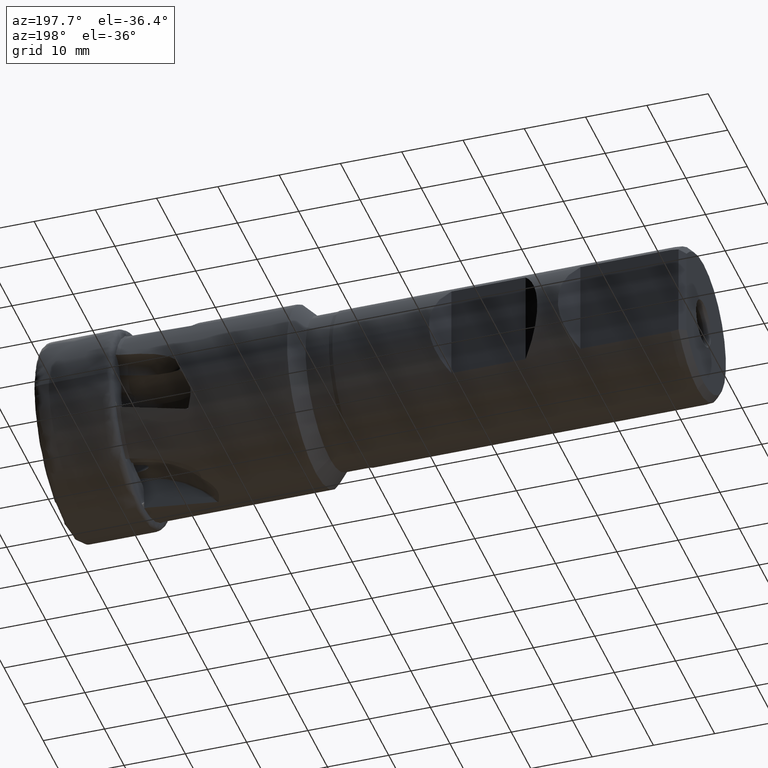
[diagram: clean part render]
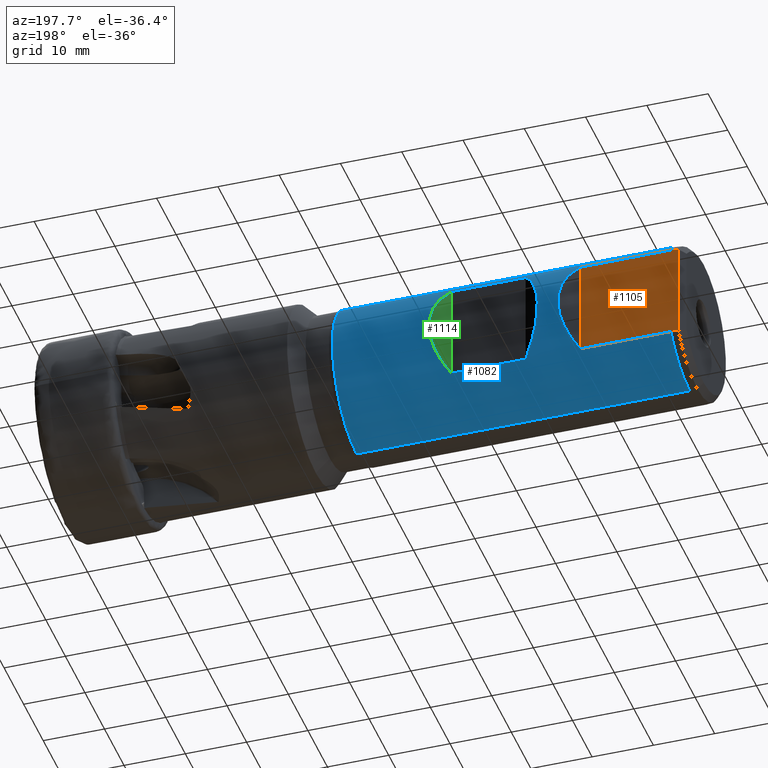
[diagram: same view with three faces highlighted in distinct colors, each labeled with its STEP entity id]
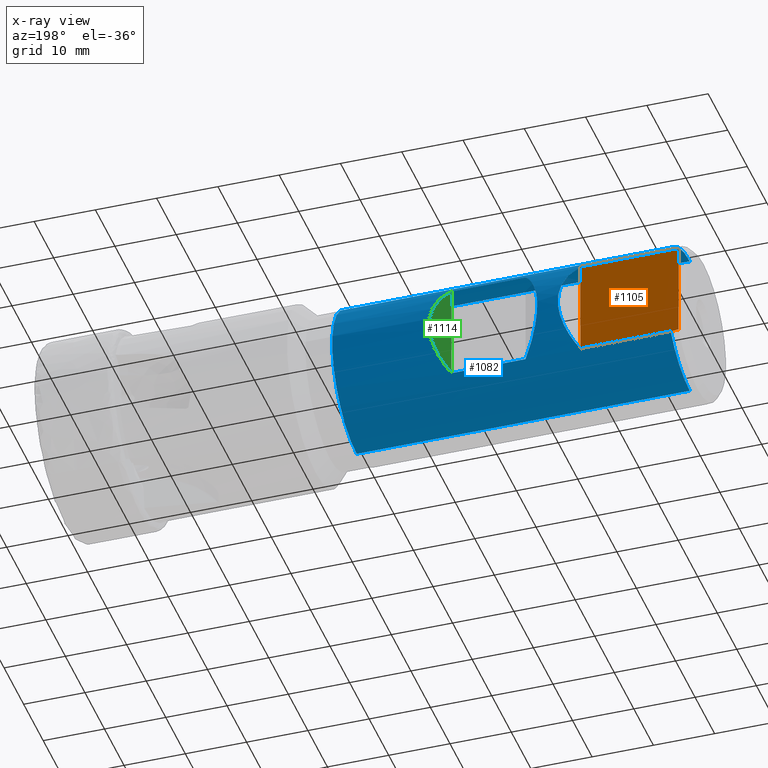
[diagram: x-ray of the same camera — body ghosted, the three highlighted faces saturated]
A machine part, auxiliary view with three faces highlighted in distinct colors.
The next image is the same camera in x-ray (body ghosted, the three faces saturated) — at least one of them is partly hidden behind the body in this view.
Their STEP definitions:

[orange] entity #1105 — the highlighted planar face has unit normal (0, -1, 0).
#18 = CARTESIAN_POINT ( 'NONE',  ( -102.3033755614693400, 9.700000000000011700, 7.778138945820196600 ) ) ;
#19 = CARTESIAN_POINT ( 'NONE',  ( -102.7200000000000000, 9.700000000000011700, 7.724635913750203600 ) ) ;
#86 = CARTESIAN_POINT ( 'NONE',  ( -101.4699999999999400, 9.700000000000011700, 7.884161337770779100 ) ) ;
#103 = CARTESIAN_POINT ( 'NONE',  ( -101.8867080486760700, 9.700000000000011700, 7.831307517202725800 ) ) ;
#350 = B_SPLINE_CURVE_WITH_KNOTS ( 'NONE', 3,
 ( #7152, #7151, #7159, #7160 ),
 .UNSPECIFIED., .F., .F.,
 ( 4, 4 ),
 ( 0.02335902754890021100, 0.02461912784830147500 ),
 .UNSPECIFIED. ) ;
#737 = EDGE_CURVE ( 'NONE', #1023, #1040, #7665, .T. ) ;
#881 = EDGE_CURVE ( 'NONE', #1005, #1024, #2877, .T. ) ;
#883 = EDGE_CURVE ( 'NONE', #1040, #1003, #2878, .T. ) ;
#1003 = VERTEX_POINT ( 'NONE', #4314 ) ;
#1005 = VERTEX_POINT ( 'NONE', #4316 ) ;
#1023 = VERTEX_POINT ( 'NONE', #4332 ) ;
#1024 = VERTEX_POINT ( 'NONE', #4333 ) ;
#1040 = VERTEX_POINT ( 'NONE', #4349 ) ;
#1105 = ADVANCED_FACE ( 'NONE', ( #3021 ), #5339, .F. ) ;
#1208 = VERTEX_POINT ( 'NONE', #6183 ) ;
#1519 = ORIENTED_EDGE ( 'NONE', *, *, #1887, .T. ) ;
#1520 = ORIENTED_EDGE ( 'NONE', *, *, #881, .T. ) ;
#1521 = ORIENTED_EDGE ( 'NONE', *, *, #1888, .T. ) ;
#1522 = ORIENTED_EDGE ( 'NONE', *, *, #1886, .F. ) ;
#1523 = ORIENTED_EDGE ( 'NONE', *, *, #737, .T. ) ;
#1524 = ORIENTED_EDGE ( 'NONE', *, *, #883, .T. ) ;
#1886 = EDGE_CURVE ( 'NONE', #1023, #1208, #6851, .T. ) ;
#1887 = EDGE_CURVE ( 'NONE', #1003, #1005, #6853, .T. ) ;
#1888 = EDGE_CURVE ( 'NONE', #1024, #1208, #350, .T. ) ;
#2195 = AXIS2_PLACEMENT_3D ( 'NONE', #5341, #5346, #5347 ) ;
#2540 = EDGE_LOOP ( 'NONE', ( #1519, #1520, #1521, #1522, #1523, #1524 ) ) ;
#2877 = LINE ( 'NONE', #4119, #2879 ) ;
#2878 = LINE ( 'NONE', #4130, #2880 ) ;
#2879 = VECTOR ( 'NONE', #4120, 1000.000000000000000 ) ;
#2880 = VECTOR ( 'NONE', #4132, 1000.000000000000000 ) ;
#3021 = FACE_OUTER_BOUND ( 'NONE', #2540, .T. ) ;
#4119 = CARTESIAN_POINT ( 'NONE',  ( 0.0000000000000000000, 9.700000000000011700, -7.884161337770779100 ) ) ;
#4120 = DIRECTION ( 'NONE',  ( -1.000000000000000000, 0.0000000000000000000, 0.0000000000000000000 ) ) ;
#4130 = CARTESIAN_POINT ( 'NONE',  ( 0.0000000000000000000, 9.700000000000011700, 7.884161337770779100 ) ) ;
#4132 = DIRECTION ( 'NONE',  ( 1.000000000000000000, -0.0000000000000000000, -0.0000000000000000000 ) ) ;
#4314 = CARTESIAN_POINT ( 'NONE',  ( -86.71999999999998500, 9.700000000000011700, 7.884161337770773800 ) ) ;
#4316 = CARTESIAN_POINT ( 'NONE',  ( -86.71999999999998500, 9.700000000000011700, -7.884161337770770200 ) ) ;
#4332 = CARTESIAN_POINT ( 'NONE',  ( -102.7200000000000000, 9.700000000000011700, 7.724635913750203600 ) ) ;
#4333 = CARTESIAN_POINT ( 'NONE',  ( -101.4699999999999400, 9.700000000000011700, -7.884161337770779100 ) ) ;
#4349 = CARTESIAN_POINT ( 'NONE',  ( -101.4699999999999400, 9.700000000000011700, 7.884161337770779100 ) ) ;
#5339 = PLANE ( 'NONE',  #2195 ) ;
#5341 = CARTESIAN_POINT ( 'NONE',  ( -86.71999999999998500, 9.700000000000011700, 23.14999999999999900 ) ) ;
#5346 = DIRECTION ( 'NONE',  ( 0.0000000000000000000, -1.000000000000000000, 0.0000000000000000000 ) ) ;
#5347 = DIRECTION ( 'NONE',  ( 0.0000000000000000000, -0.0000000000000000000, -1.000000000000000000 ) ) ;
#6183 = CARTESIAN_POINT ( 'NONE',  ( -102.7200000000000000, 9.700000000000011700, -7.724635913750204500 ) ) ;
#6851 = LINE ( 'NONE', #7153, #6854 ) ;
#6853 = LINE ( 'NONE', #7157, #6856 ) ;
#6854 = VECTOR ( 'NONE', #7140, 1000.000000000000000 ) ;
#6856 = VECTOR ( 'NONE', #7158, 1000.000000000000000 ) ;
#7140 = DIRECTION ( 'NONE',  ( -0.0000000000000000000, -0.0000000000000000000, -1.000000000000000000 ) ) ;
#7151 = CARTESIAN_POINT ( 'NONE',  ( -101.8867147186148100, 9.700000000000011700, -7.831306671210560600 ) ) ;
#7152 = CARTESIAN_POINT ( 'NONE',  ( -101.4699999999999400, 9.700000000000011700, -7.884161337770779100 ) ) ;
#7153 = CARTESIAN_POINT ( 'NONE',  ( -102.7200000000000000, 9.700000000000011700, 23.14999999999999900 ) ) ;
#7157 = CARTESIAN_POINT ( 'NONE',  ( -86.71999999999998500, 9.700000000000011700, 23.14999999999999900 ) ) ;
#7158 = DIRECTION ( 'NONE',  ( -0.0000000000000000000, -0.0000000000000000000, -1.000000000000000000 ) ) ;
#7159 = CARTESIAN_POINT ( 'NONE',  ( -102.3033823662007800, 9.700000000000011700, -7.778138071954600700 ) ) ;
#7160 = CARTESIAN_POINT ( 'NONE',  ( -102.7200000000000000, 9.700000000000011700, -7.724635913750204500 ) ) ;
#7665 = B_SPLINE_CURVE_WITH_KNOTS ( 'NONE', 3,
 ( #19, #18, #103, #86 ),
 .UNSPECIFIED., .F., .F.,
 ( 4, 4 ),
 ( 0.02174805733030093700, 0.02300789162326362000 ),
 .UNSPECIFIED. ) ;

[blue] entity #1082 — the highlighted cylindrical surface (partial cylindrical patch) has radius 12.5 mm, axis along (1, -0, -0).
#142 = CARTESIAN_POINT ( 'NONE',  ( -101.4699999999999400, 0.0000000000000000000, 0.0000000000000000000 ) ) ;
#143 = DIRECTION ( 'NONE',  ( 1.000000000000000000, -0.0000000000000000000, -0.0000000000000000000 ) ) ;
#144 = DIRECTION ( 'NONE',  ( 0.0000000000000000000, 0.0000000000000000000, -1.000000000000000000 ) ) ;
#608 =( BOUNDED_CURVE ( )  B_SPLINE_CURVE ( 3, ( #4109, #4107, #4105, #4110 ),
 .UNSPECIFIED., .F., .F. ) 
 B_SPLINE_CURVE_WITH_KNOTS ( ( 4, 4 ),
 ( 5.600687989903615700, 6.965682624455556700 ),
 .UNSPECIFIED. ) 
 CURVE ( )  GEOMETRIC_REPRESENTATION_ITEM ( )  RATIONAL_B_SPLINE_CURVE ( ( 1.000000000000000000, 0.8506666666666672400, 0.8506666666666672400, 1.000000000000000000 ) ) 
 REPRESENTATION_ITEM ( '' )  );
#609 =( BOUNDED_CURVE ( )  B_SPLINE_CURVE ( 3, ( #4129, #4124, #4125, #4131 ),
 .UNSPECIFIED., .F., .F. ) 
 B_SPLINE_CURVE_WITH_KNOTS ( ( 4, 4 ),
 ( 5.600687989903617500, 6.965682624455555000 ),
 .UNSPECIFIED. ) 
 CURVE ( )  GEOMETRIC_REPRESENTATION_ITEM ( )  RATIONAL_B_SPLINE_CURVE ( ( 1.000000000000000000, 0.8506666666666680100, 0.8506666666666680100, 1.000000000000000000 ) ) 
 REPRESENTATION_ITEM ( '' )  );
#610 =( BOUNDED_CURVE ( )  B_SPLINE_CURVE ( 3, ( #4114, #4112, #4102, #4116 ),
 .UNSPECIFIED., .F., .F. ) 
 B_SPLINE_CURVE_WITH_KNOTS ( ( 4, 4 ),
 ( 2.459095336313823900, 3.824089970865762700 ),
 .UNSPECIFIED. ) 
 CURVE ( )  GEOMETRIC_REPRESENTATION_ITEM ( )  RATIONAL_B_SPLINE_CURVE ( ( 1.000000000000000000, 0.8506666666666676800, 0.8506666666666676800, 1.000000000000000000 ) ) 
 REPRESENTATION_ITEM ( '' )  );
#739 = EDGE_CURVE ( 'NONE', #1040, #1022, #2774, .T. ) ;
#873 = EDGE_CURVE ( 'NONE', #1034, #1035, #2864, .T. ) ;
#874 = EDGE_CURVE ( 'NONE', #1032, #1034, #608, .T. ) ;
#875 = EDGE_CURVE ( 'NONE', #1030, #1032, #2866, .T. ) ;
#876 = EDGE_CURVE ( 'NONE', #1035, #1030, #610, .T. ) ;
#877 = EDGE_CURVE ( 'NONE', #1022, #1028, #2871, .T. ) ;
#878 = EDGE_CURVE ( 'NONE', #1028, #1007, #2873, .T. ) ;
#879 = EDGE_CURVE ( 'NONE', #1013, #1007, #2874, .T. ) ;
#880 = EDGE_CURVE ( 'NONE', #1013, #1024, #2875, .T. ) ;
#881 = EDGE_CURVE ( 'NONE', #1005, #1024, #2877, .T. ) ;
#882 = EDGE_CURVE ( 'NONE', #1003, #1005, #609, .T. ) ;
#883 = EDGE_CURVE ( 'NONE', #1040, #1003, #2878, .T. ) ;
#1003 = VERTEX_POINT ( 'NONE', #4314 ) ;
#1005 = VERTEX_POINT ( 'NONE', #4316 ) ;
#1007 = VERTEX_POINT ( 'NONE', #4318 ) ;
#1013 = VERTEX_POINT ( 'NONE', #4322 ) ;
#1022 = VERTEX_POINT ( 'NONE', #4331 ) ;
#1024 = VERTEX_POINT ( 'NONE', #4333 ) ;
#1028 = VERTEX_POINT ( 'NONE', #4337 ) ;
#1030 = VERTEX_POINT ( 'NONE', #4339 ) ;
#1032 = VERTEX_POINT ( 'NONE', #4341 ) ;
#1034 = VERTEX_POINT ( 'NONE', #4343 ) ;
#1035 = VERTEX_POINT ( 'NONE', #4344 ) ;
#1040 = VERTEX_POINT ( 'NONE', #4349 ) ;
#1082 = ADVANCED_FACE ( 'NONE', ( #2971, #2967 ), #2978, .T. ) ;
#2082 = AXIS2_PLACEMENT_3D ( 'NONE', #142, #143, #144 ) ;
#2107 = AXIS2_PLACEMENT_3D ( 'NONE', #4121, #4122, #4123 ) ;
#2108 = AXIS2_PLACEMENT_3D ( 'NONE', #4126, #4127, #4128 ) ;
#2162 = AXIS2_PLACEMENT_3D ( 'NONE', #5120, #5121, #5119 ) ;
#2500 = EDGE_LOOP ( 'NONE', ( #2748, #2749, #2750, #2751 ) ) ;
#2519 = EDGE_LOOP ( 'NONE', ( #2752, #2753, #2754, #2755, #2756, #2757, #2758, #2759 ) ) ;
#2748 = ORIENTED_EDGE ( 'NONE', *, *, #873, .F. ) ;
#2749 = ORIENTED_EDGE ( 'NONE', *, *, #874, .F. ) ;
#2750 = ORIENTED_EDGE ( 'NONE', *, *, #875, .F. ) ;
#2751 = ORIENTED_EDGE ( 'NONE', *, *, #876, .F. ) ;
#2752 = ORIENTED_EDGE ( 'NONE', *, *, #739, .T. ) ;
#2753 = ORIENTED_EDGE ( 'NONE', *, *, #877, .T. ) ;
#2754 = ORIENTED_EDGE ( 'NONE', *, *, #878, .T. ) ;
#2755 = ORIENTED_EDGE ( 'NONE', *, *, #879, .F. ) ;
#2756 = ORIENTED_EDGE ( 'NONE', *, *, #880, .T. ) ;
#2757 = ORIENTED_EDGE ( 'NONE', *, *, #881, .F. ) ;
#2758 = ORIENTED_EDGE ( 'NONE', *, *, #882, .F. ) ;
#2759 = ORIENTED_EDGE ( 'NONE', *, *, #883, .F. ) ;
#2774 = CIRCLE ( 'NONE', #2082, 12.49999999999999100 ) ;
#2864 = LINE ( 'NONE', #4100, #2869 ) ;
#2866 = LINE ( 'NONE', #4108, #2870 ) ;
#2869 = VECTOR ( 'NONE', #4106, 1000.000000000000000 ) ;
#2870 = VECTOR ( 'NONE', #4111, 1000.000000000000000 ) ;
#2871 = LINE ( 'NONE', #4115, #2872 ) ;
#2872 = VECTOR ( 'NONE', #4117, 1000.000000000000000 ) ;
#2873 = CIRCLE ( 'NONE', #2107, 12.49999999999999100 ) ;
#2874 = LINE ( 'NONE', #4118, #2876 ) ;
#2875 = CIRCLE ( 'NONE', #2108, 12.49999999999999100 ) ;
#2876 = VECTOR ( 'NONE', #4113, 1000.000000000000000 ) ;
#2877 = LINE ( 'NONE', #4119, #2879 ) ;
#2878 = LINE ( 'NONE', #4130, #2880 ) ;
#2879 = VECTOR ( 'NONE', #4120, 1000.000000000000000 ) ;
#2880 = VECTOR ( 'NONE', #4132, 1000.000000000000000 ) ;
#2967 = FACE_OUTER_BOUND ( 'NONE', #2519, .T. ) ;
#2971 = FACE_BOUND ( 'NONE', #2500, .T. ) ;
#2978 = CYLINDRICAL_SURFACE ( 'NONE', #2162, 12.49999999999999100 ) ;
#4100 = CARTESIAN_POINT ( 'NONE',  ( 0.0000000000000000000, 9.700000000000009900, -7.884161337770780900 ) ) ;
#4102 = CARTESIAN_POINT ( 'NONE',  ( -81.66717868338552900, 13.59717868338556100, 3.089404912919582200 ) ) ;
#4105 = CARTESIAN_POINT ( 'NONE',  ( -61.77282131661443300, 13.59717868338556600, -3.089404912919587500 ) ) ;
#4106 = DIRECTION ( 'NONE',  ( -1.000000000000000000, 0.0000000000000000000, 0.0000000000000000000 ) ) ;
#4107 = CARTESIAN_POINT ( 'NONE',  ( -61.77282131661443300, 13.59717868338556500, 3.089404912919587500 ) ) ;
#4108 = CARTESIAN_POINT ( 'NONE',  ( 0.0000000000000000000, 9.700000000000009900, 7.884161337770780900 ) ) ;
#4109 = CARTESIAN_POINT ( 'NONE',  ( -65.66999999999998700, 9.700000000000009900, 7.884161337770789800 ) ) ;
#4110 = CARTESIAN_POINT ( 'NONE',  ( -65.66999999999998700, 9.700000000000009900, -7.884161337770784400 ) ) ;
#4111 = DIRECTION ( 'NONE',  ( 1.000000000000000000, -0.0000000000000000000, -0.0000000000000000000 ) ) ;
#4112 = CARTESIAN_POINT ( 'NONE',  ( -81.66717868338552900, 13.59717868338556100, -3.089404912919578200 ) ) ;
#4113 = DIRECTION ( 'NONE',  ( 1.000000000000000000, -0.0000000000000000000, -0.0000000000000000000 ) ) ;
#4114 = CARTESIAN_POINT ( 'NONE',  ( -77.76999999999999600, 9.700000000000009900, -7.884161337770780900 ) ) ;
#4115 = CARTESIAN_POINT ( 'NONE',  ( 0.0000000000000000000, 1.530808498934190100E-015, 12.49999999999999100 ) ) ;
#4116 = CARTESIAN_POINT ( 'NONE',  ( -77.76999999999999600, 9.700000000000009900, 7.884161337770780900 ) ) ;
#4117 = DIRECTION ( 'NONE',  ( 1.000000000000000000, -0.0000000000000000000, -0.0000000000000000000 ) ) ;
#4118 = CARTESIAN_POINT ( 'NONE',  ( 0.0000000000000000000, 0.0000000000000000000, -12.49999999999999100 ) ) ;
#4119 = CARTESIAN_POINT ( 'NONE',  ( 0.0000000000000000000, 9.700000000000011700, -7.884161337770779100 ) ) ;
#4120 = DIRECTION ( 'NONE',  ( -1.000000000000000000, 0.0000000000000000000, 0.0000000000000000000 ) ) ;
#4121 = CARTESIAN_POINT ( 'NONE',  ( -47.11999999999995500, 0.0000000000000000000, 0.0000000000000000000 ) ) ;
#4122 = DIRECTION ( 'NONE',  ( -1.000000000000000000, 0.0000000000000000000, 0.0000000000000000000 ) ) ;
#4123 = DIRECTION ( 'NONE',  ( 0.0000000000000000000, 0.0000000000000000000, 1.000000000000000000 ) ) ;
#4124 = CARTESIAN_POINT ( 'NONE',  ( -82.82282131661445100, 13.59717868338555400, 3.089404912919581700 ) ) ;
#4125 = CARTESIAN_POINT ( 'NONE',  ( -82.82282131661445100, 13.59717868338555600, -3.089404912919577300 ) ) ;
#4126 = CARTESIAN_POINT ( 'NONE',  ( -101.4699999999999400, 0.0000000000000000000, 0.0000000000000000000 ) ) ;
#4127 = DIRECTION ( 'NONE',  ( 1.000000000000000000, -0.0000000000000000000, -0.0000000000000000000 ) ) ;
#4128 = DIRECTION ( 'NONE',  ( 0.0000000000000000000, 0.0000000000000000000, -1.000000000000000000 ) ) ;
#4129 = CARTESIAN_POINT ( 'NONE',  ( -86.71999999999998500, 9.700000000000011700, 7.884161337770773800 ) ) ;
#4130 = CARTESIAN_POINT ( 'NONE',  ( 0.0000000000000000000, 9.700000000000011700, 7.884161337770779100 ) ) ;
#4131 = CARTESIAN_POINT ( 'NONE',  ( -86.71999999999998500, 9.700000000000011700, -7.884161337770770200 ) ) ;
#4132 = DIRECTION ( 'NONE',  ( 1.000000000000000000, -0.0000000000000000000, -0.0000000000000000000 ) ) ;
#4314 = CARTESIAN_POINT ( 'NONE',  ( -86.71999999999998500, 9.700000000000011700, 7.884161337770773800 ) ) ;
#4316 = CARTESIAN_POINT ( 'NONE',  ( -86.71999999999998500, 9.700000000000011700, -7.884161337770770200 ) ) ;
#4318 = CARTESIAN_POINT ( 'NONE',  ( -47.11999999999995500, 1.530808498934190100E-015, -12.49999999999999100 ) ) ;
#4322 = CARTESIAN_POINT ( 'NONE',  ( -101.4699999999999400, 0.0000000000000000000, -12.49999999999999100 ) ) ;
#4331 = CARTESIAN_POINT ( 'NONE',  ( -101.4699999999999400, 1.530808498934190100E-015, 12.49999999999999100 ) ) ;
#4333 = CARTESIAN_POINT ( 'NONE',  ( -101.4699999999999400, 9.700000000000011700, -7.884161337770779100 ) ) ;
#4337 = CARTESIAN_POINT ( 'NONE',  ( -47.11999999999995500, 0.0000000000000000000, 12.49999999999999100 ) ) ;
#4339 = CARTESIAN_POINT ( 'NONE',  ( -77.76999999999999600, 9.700000000000009900, 7.884161337770780900 ) ) ;
#4341 = CARTESIAN_POINT ( 'NONE',  ( -65.66999999999998700, 9.700000000000009900, 7.884161337770789800 ) ) ;
#4343 = CARTESIAN_POINT ( 'NONE',  ( -65.66999999999998700, 9.700000000000009900, -7.884161337770784400 ) ) ;
#4344 = CARTESIAN_POINT ( 'NONE',  ( -77.76999999999999600, 9.700000000000009900, -7.884161337770780900 ) ) ;
#4349 = CARTESIAN_POINT ( 'NONE',  ( -101.4699999999999400, 9.700000000000011700, 7.884161337770779100 ) ) ;
#5119 = DIRECTION ( 'NONE',  ( 0.0000000000000000000, 0.0000000000000000000, -1.000000000000000000 ) ) ;
#5120 = CARTESIAN_POINT ( 'NONE',  ( 0.0000000000000000000, 0.0000000000000000000, 0.0000000000000000000 ) ) ;
#5121 = DIRECTION ( 'NONE',  ( 1.000000000000000000, -0.0000000000000000000, -0.0000000000000000000 ) ) ;

[green] entity #1114 — the highlighted planar face has unit normal (0.7071, -0.7071, 0).
#608 =( BOUNDED_CURVE ( )  B_SPLINE_CURVE ( 3, ( #4109, #4107, #4105, #4110 ),
 .UNSPECIFIED., .F., .F. ) 
 B_SPLINE_CURVE_WITH_KNOTS ( ( 4, 4 ),
 ( 5.600687989903615700, 6.965682624455556700 ),
 .UNSPECIFIED. ) 
 CURVE ( )  GEOMETRIC_REPRESENTATION_ITEM ( )  RATIONAL_B_SPLINE_CURVE ( ( 1.000000000000000000, 0.8506666666666672400, 0.8506666666666672400, 1.000000000000000000 ) ) 
 REPRESENTATION_ITEM ( '' )  );
#874 = EDGE_CURVE ( 'NONE', #1032, #1034, #608, .T. ) ;
#1032 = VERTEX_POINT ( 'NONE', #4341 ) ;
#1034 = VERTEX_POINT ( 'NONE', #4343 ) ;
#1114 = ADVANCED_FACE ( 'NONE', ( #3032 ), #5400, .F. ) ;
#1529 = ORIENTED_EDGE ( 'NONE', *, *, #1889, .F. ) ;
#1530 = ORIENTED_EDGE ( 'NONE', *, *, #874, .T. ) ;
#1889 = EDGE_CURVE ( 'NONE', #1032, #1034, #6857, .T. ) ;
#2499 = EDGE_LOOP ( 'NONE', ( #1529, #1530 ) ) ;
#3032 = FACE_OUTER_BOUND ( 'NONE', #2499, .T. ) ;
#4105 = CARTESIAN_POINT ( 'NONE',  ( -61.77282131661443300, 13.59717868338556600, -3.089404912919587500 ) ) ;
#4107 = CARTESIAN_POINT ( 'NONE',  ( -61.77282131661443300, 13.59717868338556500, 3.089404912919587500 ) ) ;
#4109 = CARTESIAN_POINT ( 'NONE',  ( -65.66999999999998700, 9.700000000000009900, 7.884161337770789800 ) ) ;
#4110 = CARTESIAN_POINT ( 'NONE',  ( -65.66999999999998700, 9.700000000000009900, -7.884161337770784400 ) ) ;
#4341 = CARTESIAN_POINT ( 'NONE',  ( -65.66999999999998700, 9.700000000000009900, 7.884161337770789800 ) ) ;
#4343 = CARTESIAN_POINT ( 'NONE',  ( -65.66999999999998700, 9.700000000000009900, -7.884161337770784400 ) ) ;
#5400 = PLANE ( 'NONE',  #5563 ) ;
#5402 = CARTESIAN_POINT ( 'NONE',  ( -65.66999999999998700, 9.700000000000009900, 23.14999999999999900 ) ) ;
#5407 = DIRECTION ( 'NONE',  ( 0.7071067811865486800, -0.7071067811865464600, 0.0000000000000000000 ) ) ;
#5408 = DIRECTION ( 'NONE',  ( 0.7071067811865464600, 0.7071067811865486800, 0.0000000000000000000 ) ) ;
#5563 = AXIS2_PLACEMENT_3D ( 'NONE', #5402, #5407, #5408 ) ;
#6857 = LINE ( 'NONE', #7161, #6858 ) ;
#6858 = VECTOR ( 'NONE', #7162, 1000.000000000000000 ) ;
#7161 = CARTESIAN_POINT ( 'NONE',  ( -65.66999999999998700, 9.700000000000009900, 23.14999999999999900 ) ) ;
#7162 = DIRECTION ( 'NONE',  ( -0.0000000000000000000, -0.0000000000000000000, -1.000000000000000000 ) ) ;